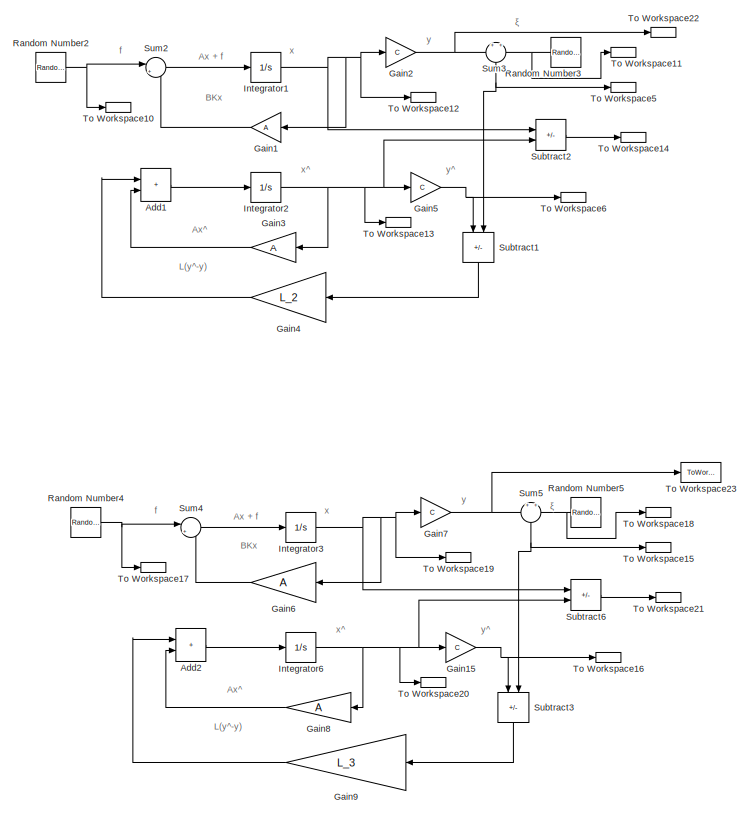
[diagram: root canvas - part 1/2, left side, full height]
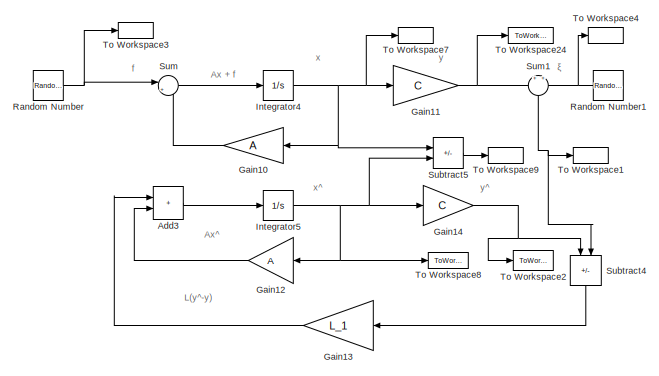
[diagram: root canvas - part 2/2, middle right region]
MODEL slx_3e563f6817a2
KIND model
CONFIG AbsTol = auto
CONFIG EnableMultiTasking = off
CONFIG FixedStep = auto
CONFIG MaxStep = auto
CONFIG MinStep = auto
CONFIG RelTol = 1e-3
CONFIG SampleTimeConstraint = Unconstrained
CONFIG SolverName = VariableStepAuto
CONFIG StartTime = 0.0
CONFIG StopTime = 30
BLOCK [Sum] Add1
  IconShape = rectangular
  Ports = [2, 1]
BLOCK [Sum] Add2
  IconShape = rectangular
  Ports = [2, 1]
BLOCK [Sum] Add3
  IconShape = rectangular
  Ports = [2, 1]
BLOCK [Gain] Gain1
  Gain = A
  Multiplication = Matrix(K*u) (u vector)
  NameLocation = top
BLOCK [Gain] Gain10
  Gain = A
  Multiplication = Matrix(K*u) (u vector)
  NameLocation = top
BLOCK [Gain] Gain11
  Gain = C
  Multiplication = Matrix(K*u) (u vector)
BLOCK [Gain] Gain12
  Gain = A
  Multiplication = Matrix(K*u) (u vector)
  NameLocation = top
BLOCK [Gain] Gain13
  Gain = L_1
  Multiplication = Matrix(K*u) (u vector)
  NameLocation = top
BLOCK [Gain] Gain14
  Gain = C
  Multiplication = Matrix(K*u) (u vector)
BLOCK [Gain] Gain15
  Gain = C
  Multiplication = Matrix(K*u)
BLOCK [Gain] Gain2
  Gain = C
  Multiplication = Matrix(K*u) (u vector)
BLOCK [Gain] Gain3
  Gain = A
  Multiplication = Matrix(K*u) (u vector)
  NameLocation = top
BLOCK [Gain] Gain4
  Gain = L_2
  Multiplication = Matrix(K*u) (u vector)
  NameLocation = top
BLOCK [Gain] Gain5
  Gain = C
  Multiplication = Matrix(K*u) (u vector)
BLOCK [Gain] Gain6
  Gain = A
  Multiplication = Matrix(K*u) (u vector)
  NameLocation = top
BLOCK [Gain] Gain7
  Gain = C
  Multiplication = Matrix(K*u)
BLOCK [Gain] Gain8
  Gain = A
  Multiplication = Matrix(K*u)
  NameLocation = top
BLOCK [Gain] Gain9
  Gain = L_3
  Multiplication = Matrix(K*u)
  NameLocation = top
BLOCK [Integrator] Integrator1
  InitialCondition = x0
  Ports = [1, 1]
BLOCK [Integrator] Integrator2
  InitialCondition = x_0
  Ports = [1, 1]
BLOCK [Integrator] Integrator3
  InitialCondition = x0
  Ports = [1, 1]
BLOCK [Integrator] Integrator4
  InitialCondition = x0
  Ports = [1, 1]
BLOCK [Integrator] Integrator5
  InitialCondition = x_0
  Ports = [1, 1]
BLOCK [Integrator] Integrator6
  InitialCondition = x_0
  Ports = [1, 1]
BLOCK [RandomNumber] Random Number
  SampleTime = 0000.1
  Seed = [1; 2; 3; 4]
  Variance = 50
BLOCK [RandomNumber] Random Number1
  NameLocation = top
  SampleTime = 00000.1
  Seed = [5 ; 6]
  Variance = 50
BLOCK [RandomNumber] Random Number2
  SampleTime = 0000.1
  Seed = [7; 8; 9; 10]
  Variance = 50
BLOCK [RandomNumber] Random Number3
  NameLocation = top
  SampleTime = 0000.1
  Seed = [11 ; 12]
  Variance = 50
BLOCK [RandomNumber] Random Number4
  SampleTime = 0000.1
  Seed = [13; 14; 15; 16]
  Variance = 50
BLOCK [RandomNumber] Random Number5
  NameLocation = top
  SampleTime = 0000.1
  Seed = [17; 18]
  Variance = 50
BLOCK [Sum] Subtract1
  IconShape = rectangular
  Inputs = +-
  NameLocation = left
  Ports = [2, 1]
BLOCK [Sum] Subtract2
  IconShape = rectangular
  Inputs = +-
  Ports = [2, 1]
BLOCK [Sum] Subtract3
  IconShape = rectangular
  Inputs = +-
  NameLocation = left
  Ports = [2, 1]
BLOCK [Sum] Subtract4
  IconShape = rectangular
  Inputs = +-
  NameLocation = left
  Ports = [2, 1]
BLOCK [Sum] Subtract5
  IconShape = rectangular
  Inputs = +-
  Ports = [2, 1]
BLOCK [Sum] Subtract6
  IconShape = rectangular
  Inputs = +-
  Ports = [2, 1]
BLOCK [Sum] Sum
  Inputs = |++
  Ports = [2, 1]
BLOCK [Sum] Sum1
  Inputs = +|+
  NameLocation = left
  Ports = [2, 1]
BLOCK [Sum] Sum2
  Inputs = |++
  Ports = [2, 1]
BLOCK [Sum] Sum3
  Inputs = +|+
  NameLocation = left
  Ports = [2, 1]
BLOCK [Sum] Sum4
  Inputs = |++
  Ports = [2, 1]
BLOCK [Sum] Sum5
  Inputs = +|+
  NameLocation = left
  Ports = [2, 1]
BLOCK [ToWorkspace] To Workspace1
  FixptAsFi = on
  MaxDataPoints = inf
  Ports = [1]
  SampleTime = -1
  SaveFormat = Timeseries
  VariableName = y_1
BLOCK [ToWorkspace] To Workspace10
  FixptAsFi = on
  MaxDataPoints = inf
  Ports = [1]
  SampleTime = -1
  SaveFormat = Timeseries
  VariableName = f_2
BLOCK [ToWorkspace] To Workspace11
  FixptAsFi = on
  MaxDataPoints = inf
  Ports = [1]
  SampleTime = -1
  SaveFormat = Timeseries
  VariableName = k_2
BLOCK [ToWorkspace] To Workspace12
  FixptAsFi = on
  MaxDataPoints = inf
  Ports = [1]
  SampleTime = 0.0001
  SaveFormat = Timeseries
  VariableName = x_2
BLOCK [ToWorkspace] To Workspace13
  FixptAsFi = on
  MaxDataPoints = inf
  Ports = [1]
  SampleTime = -1
  SaveFormat = Timeseries
  VariableName = x_2_
BLOCK [ToWorkspace] To Workspace14
  FixptAsFi = on
  MaxDataPoints = inf
  Ports = [1]
  SampleTime = -1
  SaveFormat = Timeseries
  VariableName = e_2
BLOCK [ToWorkspace] To Workspace15
  FixptAsFi = on
  MaxDataPoints = inf
  Ports = [1]
  SampleTime = -1
  SaveFormat = Timeseries
  VariableName = y_3
BLOCK [ToWorkspace] To Workspace16
  FixptAsFi = on
  MaxDataPoints = inf
  Ports = [1]
  SampleTime = -1
  SaveFormat = Timeseries
  VariableName = y_3_
BLOCK [ToWorkspace] To Workspace17
  FixptAsFi = on
  MaxDataPoints = inf
  Ports = [1]
  SampleTime = -1
  SaveFormat = Timeseries
  VariableName = f_3
BLOCK [ToWorkspace] To Workspace18
  FixptAsFi = on
  MaxDataPoints = inf
  Ports = [1]
  SampleTime = -1
  SaveFormat = Timeseries
  VariableName = k_3
BLOCK [ToWorkspace] To Workspace19
  FixptAsFi = on
  MaxDataPoints = inf
  Ports = [1]
  SampleTime = 0.0001
  SaveFormat = Timeseries
  VariableName = x_3
BLOCK [ToWorkspace] To Workspace2
  FixptAsFi = on
  MaxDataPoints = inf
  Ports = [1]
  SampleTime = -1
  SaveFormat = Timeseries
  VariableName = y_1_
BLOCK [ToWorkspace] To Workspace20
  FixptAsFi = on
  MaxDataPoints = inf
  Ports = [1]
  SampleTime = -1
  SaveFormat = Timeseries
  VariableName = x_3_
BLOCK [ToWorkspace] To Workspace21
  FixptAsFi = on
  MaxDataPoints = inf
  Ports = [1]
  SampleTime = -1
  SaveFormat = Timeseries
  VariableName = e_3
BLOCK [ToWorkspace] To Workspace22
  FixptAsFi = on
  MaxDataPoints = inf
  Ports = [1]
  SampleTime = -1
  SaveFormat = Timeseries
  VariableName = y_f_2
BLOCK [ToWorkspace] To Workspace23
  FixptAsFi = on
  MaxDataPoints = inf
  Ports = [1]
  SampleTime = -1
  SaveFormat = Timeseries
  VariableName = y_f_3
BLOCK [ToWorkspace] To Workspace24
  FixptAsFi = on
  MaxDataPoints = inf
  Ports = [1]
  SampleTime = -1
  SaveFormat = Timeseries
  VariableName = y_f_1
BLOCK [ToWorkspace] To Workspace3
  FixptAsFi = on
  MaxDataPoints = inf
  Ports = [1]
  SampleTime = -1
  SaveFormat = Timeseries
  VariableName = f_1
BLOCK [ToWorkspace] To Workspace4
  FixptAsFi = on
  MaxDataPoints = inf
  Ports = [1]
  SampleTime = -1
  SaveFormat = Timeseries
  VariableName = k_1
BLOCK [ToWorkspace] To Workspace5
  FixptAsFi = on
  MaxDataPoints = inf
  Ports = [1]
  SampleTime = -1
  SaveFormat = Timeseries
  VariableName = y_2
BLOCK [ToWorkspace] To Workspace6
  FixptAsFi = on
  MaxDataPoints = inf
  Ports = [1]
  SampleTime = -1
  SaveFormat = Timeseries
  VariableName = y_2_
BLOCK [ToWorkspace] To Workspace7
  FixptAsFi = on
  MaxDataPoints = inf
  Ports = [1]
  SampleTime = 0.00001
  SaveFormat = Timeseries
  VariableName = x_1
BLOCK [ToWorkspace] To Workspace8
  FixptAsFi = on
  MaxDataPoints = inf
  Ports = [1]
  SampleTime = -1
  SaveFormat = Timeseries
  VariableName = x_1_
BLOCK [ToWorkspace] To Workspace9
  FixptAsFi = on
  MaxDataPoints = inf
  Ports = [1]
  SampleTime = -1
  SaveFormat = Timeseries
  VariableName = e_1
ANNOTATION (root): Ax + f
ANNOTATION (root): Ax^
ANNOTATION (root): BKx
ANNOTATION (root): L(y^-y)
ANNOTATION (root): f
ANNOTATION (root): x
ANNOTATION (root): x^
ANNOTATION (root): y
ANNOTATION (root): y^
ANNOTATION (root): ξ
LINE Add1:1 -> Integrator2:1
LINE Add2:1 -> Integrator6:1
LINE Add3:1 -> Integrator5:1
LINE Gain10:1 -> Sum:2
NET Gain11:1 -> Sum1:1, To Workspace24:1
LINE Gain12:1 -> Add3:2
LINE Gain13:1 -> Add3:1
NET Gain14:1 -> Subtract4:1, To Workspace2:1
NET Gain15:1 -> Subtract3:1, To Workspace16:1
LINE Gain1:1 -> Sum2:2
NET Gain2:1 -> Sum3:1, To Workspace22:1
LINE Gain3:1 -> Add1:2
LINE Gain4:1 -> Add1:1
NET Gain5:1 -> Subtract1:1, To Workspace6:1
LINE Gain6:1 -> Sum4:2
NET Gain7:1 -> Sum5:1, To Workspace23:1
LINE Gain8:1 -> Add2:2
LINE Gain9:1 -> Add2:1
NET Integrator1:1 -> Gain1:1, Gain2:1, Subtract2:1, To Workspace12:1
NET Integrator2:1 -> Gain3:1, Gain5:1, Subtract2:2, To Workspace13:1
NET Integrator3:1 -> Gain6:1, Gain7:1, Subtract6:1, To Workspace19:1
NET Integrator4:1 -> Gain10:1, Gain11:1, Subtract5:1, To Workspace7:1
NET Integrator5:1 -> Gain12:1, Gain14:1, Subtract5:2, To Workspace8:1
NET Integrator6:1 -> Gain15:1, Gain8:1, Subtract6:2, To Workspace20:1
NET Random Number1:1 -> Sum1:2, To Workspace4:1
NET Random Number2:1 -> Sum2:1, To Workspace10:1
NET Random Number3:1 -> Sum3:2, To Workspace11:1
NET Random Number4:1 -> Sum4:1, To Workspace17:1
NET Random Number5:1 -> Sum5:2, To Workspace18:1
NET Random Number:1 -> Sum:1, To Workspace3:1
LINE Subtract1:1 -> Gain4:1
LINE Subtract2:1 -> To Workspace14:1
LINE Subtract3:1 -> Gain9:1
LINE Subtract4:1 -> Gain13:1
LINE Subtract5:1 -> To Workspace9:1
LINE Subtract6:1 -> To Workspace21:1
NET Sum1:1 -> Subtract4:2, To Workspace1:1
LINE Sum2:1 -> Integrator1:1
NET Sum3:1 -> Subtract1:2, To Workspace5:1
LINE Sum4:1 -> Integrator3:1
NET Sum5:1 -> Subtract3:2, To Workspace15:1
LINE Sum:1 -> Integrator4:1
note: NET lines group one-source signal fan-out (src -> all destinations, sorted); 1:1 wires keep LINE
